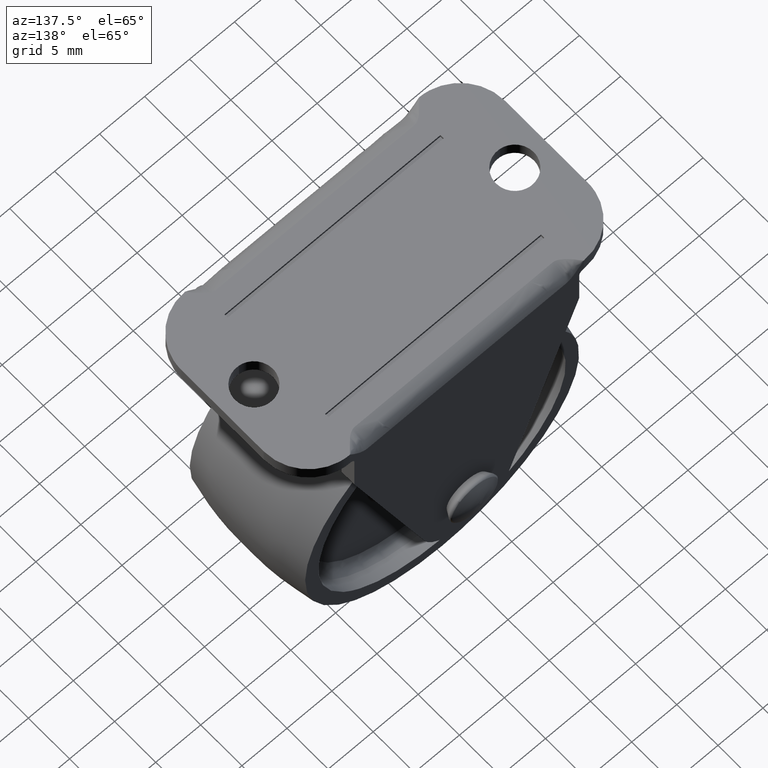
[diagram: clean part render]
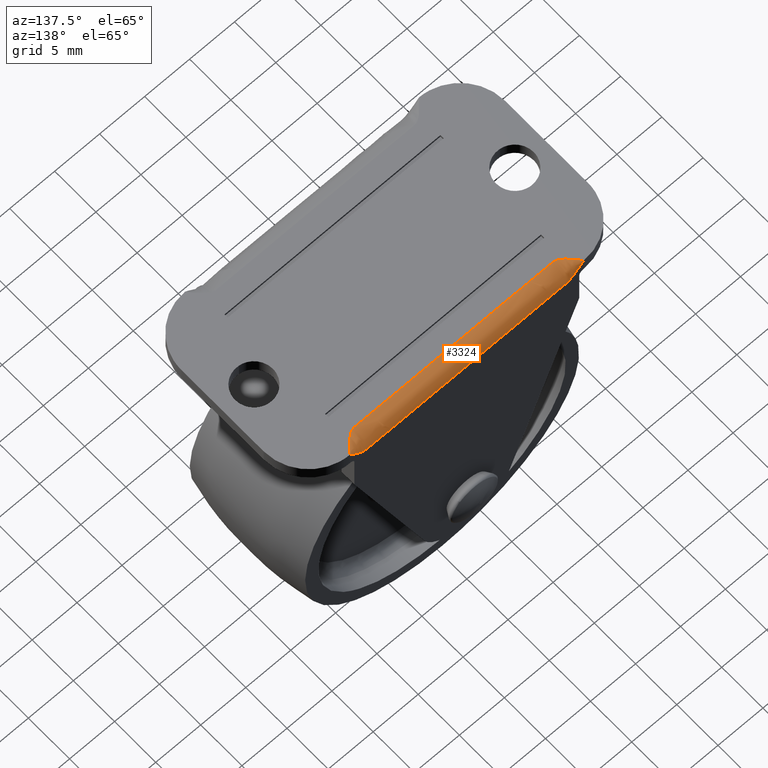
[diagram: same view with one face highlighted and labeled with its STEP entity id]
A machine part, auxiliary view. The second image highlights one B-rep face of the part: STEP entity #3324.
In plain terms, the highlighted face is a freeform B-spline surface patch.
Its self-contained STEP definition (entity closure, byte-faithful):
#3254=CARTESIAN_POINT('',(-13.0,10.0,26.0));
#3255=CARTESIAN_POINT('',(-12.999999999999995,9.999999999999915,26.0));
#3256=CARTESIAN_POINT('',(-13.0,10.0,26.0));
#3257=CARTESIAN_POINT('',(-12.333332809734561,10.0,25.199999999999999));
#3258=CARTESIAN_POINT('',(-12.333332809734548,9.999999999999915,26.0));
#3259=CARTESIAN_POINT('',(-12.333332809734561,9.199999999999999,26.0));
#3260=CARTESIAN_POINT('',(-11.666665619469100,10.0,24.399999999999999));
#3261=CARTESIAN_POINT('',(-11.666665619469100,9.999999999999915,26.0));
#3262=CARTESIAN_POINT('',(-11.666665619469100,8.399999999999912,26.0));
#3263=CARTESIAN_POINT('',(-10.999998429203661,10.0,24.399999999999999));
#3264=CARTESIAN_POINT('',(-10.999998429203668,9.999999999999915,26.0));
#3265=CARTESIAN_POINT('',(-10.999998429203661,8.399999999999912,26.0));
#3266=CARTESIAN_POINT('',(-3.666665095870335,10.0,24.399999999999999));
#3267=CARTESIAN_POINT('',(-3.666665095870330,9.999999999999915,26.0));
#3268=CARTESIAN_POINT('',(-3.666665095870335,8.399999999999912,26.0));
#3269=CARTESIAN_POINT('',(3.666668237462995,10.0,24.399999999999999));
#3270=CARTESIAN_POINT('',(3.666668237462992,9.999999999999915,26.0));
#3271=CARTESIAN_POINT('',(3.666668237462995,8.399999999999912,26.0));
#3272=CARTESIAN_POINT('',(11.000001570796320,10.0,24.399999999999999));
#3273=CARTESIAN_POINT('',(11.000001570796321,9.999999999999915,26.0));
#3274=CARTESIAN_POINT('',(11.000001570796320,8.399999999999912,26.0));
#3275=CARTESIAN_POINT('',(11.666668237463000,10.0,24.399999999999999));
#3276=CARTESIAN_POINT('',(11.666668237462986,9.999999999999915,26.0));
#3277=CARTESIAN_POINT('',(11.666668237463000,8.399999999999912,26.0));
#3278=CARTESIAN_POINT('',(12.333334904129661,10.0,25.199999999999999));
#3279=CARTESIAN_POINT('',(12.333334904129652,9.999999999999915,26.0));
#3280=CARTESIAN_POINT('',(12.333334904129661,9.199999999999999,26.0));
#3281=CARTESIAN_POINT('',(13.000001570796320,10.0,26.0));
#3282=CARTESIAN_POINT('',(13.000001570796316,9.999999999999915,26.0));
#3283=CARTESIAN_POINT('',(13.000001570796320,10.0,26.0));
#3291=(BOUNDED_SURFACE()B_SPLINE_SURFACE(2,3,((#3254,#3257,#3260,#3263,#3266,#3269,#3272,#3275,#3278,#3281),(#3255,#3258,#3261,#3264,#3267,#3270,#3273,#3276,#3279,#3282),(#3256,#3259,#3262,#3265,#3268,#3271,#3274,#3277,#3280,#3283)),.UNSPECIFIED.,.F.,.F.,.U.)B_SPLINE_SURFACE_WITH_KNOTS((3,3),(4,3,3,4),(0.0,1.0),(0.0,0.076923132690991,0.923076927724249,1.0),.UNSPECIFIED.)GEOMETRIC_REPRESENTATION_ITEM()RATIONAL_B_SPLINE_SURFACE(((1.0,1.0,1.0,1.0,1.0,1.0,1.0,1.0,1.0,1.0),(0.707106781186548,0.707106781186548,0.707106781186548,0.707106781186548,0.707106781186548,0.707106781186548,0.707106781186548,0.707106781186548,0.707106781186548,0.707106781186548),(1.0,1.0,1.0,1.0,1.0,1.0,1.0,1.0,1.0,1.0)))REPRESENTATION_ITEM('')SURFACE());
#3292=CARTESIAN_POINT('',(13.000001570796320,9.999999999999670,26.0));
#3293=VERTEX_POINT('',#3292);
#3294=CARTESIAN_POINT('',(-13.0,10.0,26.0));
#3295=VERTEX_POINT('',#3294);
#3296=CARTESIAN_POINT('',(13.000001570796320,9.999999999999670,26.0));
#3297=CARTESIAN_POINT('',(12.333334904129661,9.199999999999999,26.0));
#3298=CARTESIAN_POINT('',(11.666668237463000,8.399999999999912,26.0));
#3299=CARTESIAN_POINT('',(11.000001570796320,8.399999999999912,26.0));
#3300=CARTESIAN_POINT('',(3.666668237462995,8.399999999999912,26.0));
#3301=CARTESIAN_POINT('',(-3.666665095870335,8.399999999999912,26.0));
#3302=CARTESIAN_POINT('',(-10.999998429203661,8.399999999999912,26.0));
#3303=CARTESIAN_POINT('',(-11.666665619469100,8.399999999999912,26.0));
#3304=CARTESIAN_POINT('',(-12.333332809734561,9.199999999999999,26.0));
#3305=CARTESIAN_POINT('',(-13.0,10.0,26.0));
#3306=B_SPLINE_CURVE_WITH_KNOTS('',3,(#3296,#3297,#3298,#3299,#3300,#3301,#3302,#3303,#3304,#3305),.UNSPECIFIED.,.F.,.U.,(4,3,3,4),(0.0,0.076923072275751,0.923076867309009,1.0),.UNSPECIFIED.);
#3307=EDGE_CURVE('',#3293,#3295,#3306,.T.);
#3308=ORIENTED_EDGE('',*,*,#3307,.F.);
#3309=CARTESIAN_POINT('',(-13.0,10.0,26.0));
#3310=CARTESIAN_POINT('',(-12.333332809734561,10.0,25.199999999999999));
#3311=CARTESIAN_POINT('',(-11.666665619469100,10.0,24.399999999999999));
#3312=CARTESIAN_POINT('',(-10.999998429203661,10.0,24.399999999999999));
#3313=CARTESIAN_POINT('',(-3.666665095870335,10.0,24.399999999999999));
#3314=CARTESIAN_POINT('',(3.666668237462995,10.0,24.399999999999999));
#3315=CARTESIAN_POINT('',(11.000001570796320,10.0,24.399999999999999));
#3316=CARTESIAN_POINT('',(11.666668237463000,10.0,24.399999999999999));
#3317=CARTESIAN_POINT('',(12.333334904129661,10.0,25.199999999999999));
#3318=CARTESIAN_POINT('',(13.000001570796320,9.999999999999670,26.0));
#3319=B_SPLINE_CURVE_WITH_KNOTS('',3,(#3309,#3310,#3311,#3312,#3313,#3314,#3315,#3316,#3317,#3318),.UNSPECIFIED.,.F.,.U.,(4,3,3,4),(0.0,0.076923132690991,0.923076927724249,1.0),.UNSPECIFIED.);
#3320=EDGE_CURVE('',#3295,#3293,#3319,.T.);
#3321=ORIENTED_EDGE('',*,*,#3320,.F.);
#3322=EDGE_LOOP('',(#3308,#3321));
#3323=FACE_OUTER_BOUND('',#3322,.T.);
#3324=ADVANCED_FACE('',(#3323),#3291,.T.);